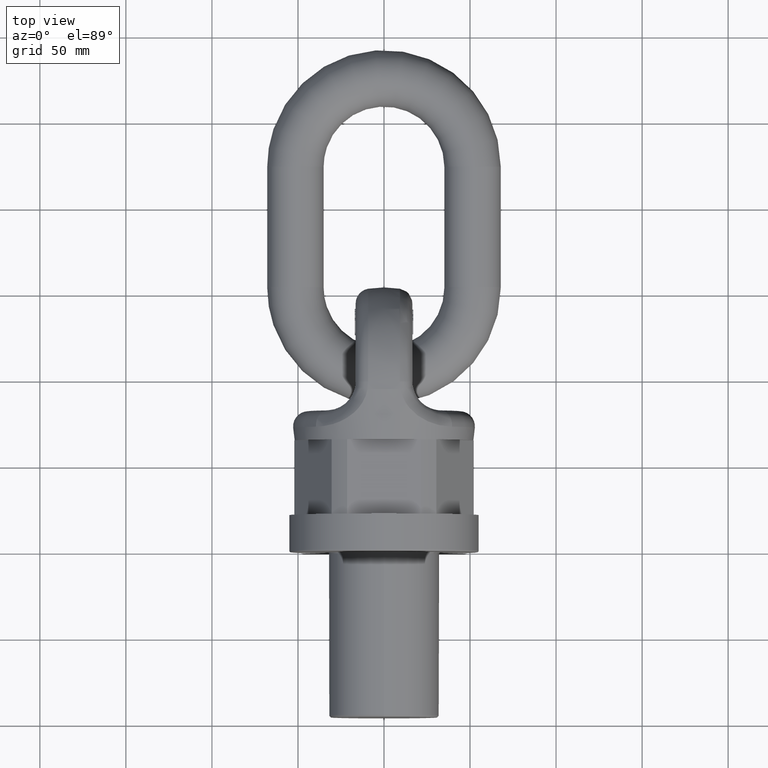
[diagram: clean part render]
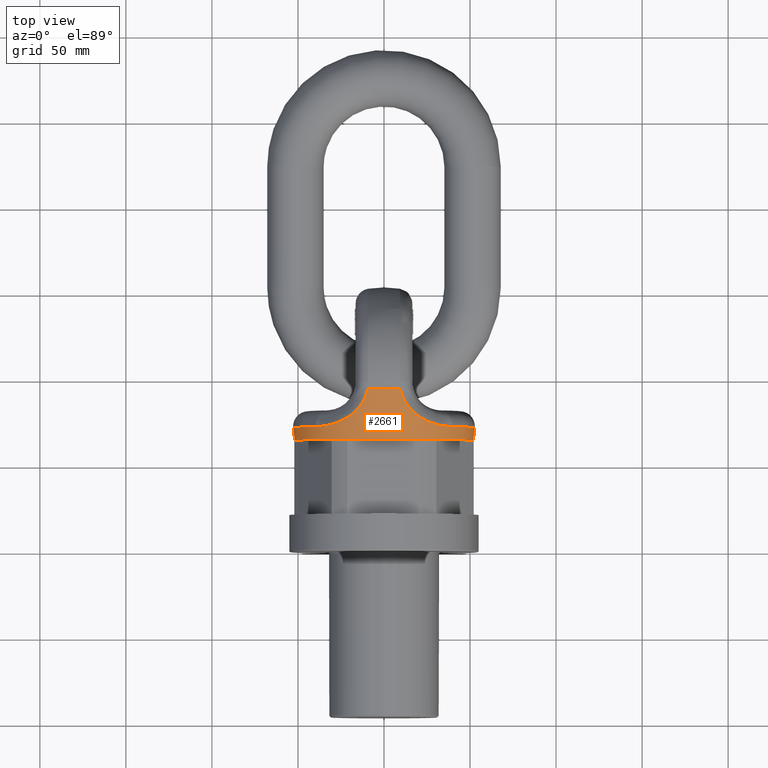
[diagram: same view with one face highlighted and labeled with its STEP entity id]
A machine part, top view. The second image highlights one B-rep face of the part: STEP entity #2661.
In plain terms, the highlighted conical surface has half-angle 5.253 deg.
Its self-contained STEP definition (entity closure, byte-faithful):
#349=B_SPLINE_CURVE_WITH_KNOTS('',3,(#7020,#7021,#7022,#7023,#7024,#7025,
#7026,#7027,#7028,#7029,#7030,#7031),.UNSPECIFIED.,.F.,.F.,(4,2,2,2,2,4),
(0.,0.25,0.5,0.75,0.875,1.),.UNSPECIFIED.);
#350=B_SPLINE_CURVE_WITH_KNOTS('',3,(#7036,#7037,#7038,#7039,#7040,#7041,
#7042,#7043,#7044,#7045),.UNSPECIFIED.,.F.,.F.,(4,2,2,2,4),(0.,0.25,0.5,
0.75,1.),.UNSPECIFIED.);
#351=B_SPLINE_CURVE_WITH_KNOTS('',3,(#7049,#7050,#7051,#7052,#7053,#7054,
#7055,#7056,#7057,#7058,#7059,#7060),.UNSPECIFIED.,.F.,.F.,(4,2,2,2,2,4),
(0.,0.25,0.5,0.75,0.875,1.),.UNSPECIFIED.);
#352=B_SPLINE_CURVE_WITH_KNOTS('',3,(#7064,#7065,#7066,#7067,#7068,#7069,
#7070,#7071,#7072,#7073),.UNSPECIFIED.,.F.,.F.,(4,2,2,2,4),(0.,0.25,0.5,
0.75,1.),.UNSPECIFIED.);
#1787=CONICAL_SURFACE('',#5649,52.1058617943637,5.2532915017207);
#2661=ADVANCED_FACE('',(#3008,#3009),#1787,.T.);
#3008=FACE_BOUND('',#3096,.T.);
#3009=FACE_BOUND('',#3097,.T.);
#3096=EDGE_LOOP('',(#3513));
#3097=EDGE_LOOP('',(#3514,#3515,#3516,#3517,#3518,#3519,#3520,#3521));
#3513=ORIENTED_EDGE('',*,*,#5058,.F.);
#3514=ORIENTED_EDGE('',*,*,#5059,.T.);
#3515=ORIENTED_EDGE('',*,*,#5060,.T.);
#3516=ORIENTED_EDGE('',*,*,#5061,.T.);
#3517=ORIENTED_EDGE('',*,*,#5062,.T.);
#3518=ORIENTED_EDGE('',*,*,#5063,.T.);
#3519=ORIENTED_EDGE('',*,*,#5064,.T.);
#3520=ORIENTED_EDGE('',*,*,#5065,.T.);
#3521=ORIENTED_EDGE('',*,*,#5066,.T.);
#4645=VERTEX_POINT('',#7019);
#4646=VERTEX_POINT('',#7032);
#4647=VERTEX_POINT('',#7033);
#4648=VERTEX_POINT('',#7035);
#4649=VERTEX_POINT('',#7046);
#4650=VERTEX_POINT('',#7048);
#4651=VERTEX_POINT('',#7061);
#4652=VERTEX_POINT('',#7063);
#4653=VERTEX_POINT('',#7074);
#5058=EDGE_CURVE('',#4645,#4645,#5553,.T.);
#5059=EDGE_CURVE('',#4646,#4647,#349,.T.);
#5060=EDGE_CURVE('',#4647,#4648,#5554,.T.);
#5061=EDGE_CURVE('',#4648,#4649,#350,.T.);
#5062=EDGE_CURVE('',#4649,#4650,#5555,.T.);
#5063=EDGE_CURVE('',#4650,#4651,#351,.T.);
#5064=EDGE_CURVE('',#4651,#4652,#5556,.T.);
#5065=EDGE_CURVE('',#4652,#4653,#352,.T.);
#5066=EDGE_CURVE('',#4653,#4646,#5557,.T.);
#5553=CIRCLE('',#5644,52.1058617943637);
#5554=CIRCLE('',#5645,54.7689818163599);
#5555=CIRCLE('',#5646,52.7907474358159);
#5556=CIRCLE('',#5647,54.7689818163599);
#5557=CIRCLE('',#5648,52.7907474358159);
#5644=AXIS2_PLACEMENT_3D('',#7018,#5959,#5960);
#5645=AXIS2_PLACEMENT_3D('',#7034,#5961,#5962);
#5646=AXIS2_PLACEMENT_3D('',#7047,#5963,#5964);
#5647=AXIS2_PLACEMENT_3D('',#7062,#5965,#5966);
#5648=AXIS2_PLACEMENT_3D('',#7075,#5967,#5968);
#5649=AXIS2_PLACEMENT_3D('',#7076,#5969,#5970);
#5959=DIRECTION('',(0.,-1.,0.));
#5960=DIRECTION('',(0.,0.,-1.));
#5961=DIRECTION('',(0.,-1.,0.));
#5962=DIRECTION('',(0.,0.,-1.));
#5963=DIRECTION('',(0.,-1.,0.));
#5964=DIRECTION('',(0.,0.,-1.));
#5965=DIRECTION('',(0.,-1.,0.));
#5966=DIRECTION('',(0.,0.,-1.));
#5967=DIRECTION('',(0.,-1.,0.));
#5968=DIRECTION('',(-2.34291072916505E-15,0.,1.));
#5969=DIRECTION('',(0.,1.,0.));
#5970=DIRECTION('',(0.,-3.85357928967801E-16,1.));
#7018=CARTESIAN_POINT('',(0.,65.,0.));
#7019=CARTESIAN_POINT('',(0.,65.,-52.1058617943637));
#7020=CARTESIAN_POINT('',(-39.52344512261,72.4488602807413,-34.9965755535044));
#7021=CARTESIAN_POINT('',(-37.005756647153,72.4488602807413,-37.8399315311034));
#7022=CARTESIAN_POINT('',(-34.1935916373493,72.7125801672574,-40.4219757461274));
#7023=CARTESIAN_POINT('',(-28.2940706816396,74.1097734282731,-44.9017778400233));
#7024=CARTESIAN_POINT('',(-25.1629883172388,75.2624464472764,-46.8210760471722));
#7025=CARTESIAN_POINT('',(-19.2267276015419,78.7079250023469,-49.8942281519693));
#7026=CARTESIAN_POINT('',(-16.3763660403344,81.0409759726313,-51.0734708220809));
#7027=CARTESIAN_POINT('',(-12.9982566390224,85.3646433570751,-52.4037027822614));
#7028=CARTESIAN_POINT('',(-12.0035120404411,86.971080786363,-52.7846340116064));
#7029=CARTESIAN_POINT('',(-10.4553507422444,90.3303236062721,-53.4276917862727));
#7030=CARTESIAN_POINT('',(-9.88394109416931,92.0984665408945,-53.6966141580966));
#7031=CARTESIAN_POINT('',(-9.54646529306761,93.964264621802,-53.930569898797));
#7032=CARTESIAN_POINT('',(-39.52344512261,72.4488602807413,-34.9965755535044));
#7033=CARTESIAN_POINT('',(-9.54646529306767,93.9642646218021,-53.9305698987969));
#7034=CARTESIAN_POINT('',(0.,93.9642646218021,0.));
#7035=CARTESIAN_POINT('',(9.54646529306783,93.9642646218021,-53.9305698987969));
#7036=CARTESIAN_POINT('',(9.54646529306782,93.9642646218019,-53.9305698987969));
#7037=CARTESIAN_POINT('',(10.2215715076205,90.2318136566987,-53.4625512320911));
#7038=CARTESIAN_POINT('',(11.8752128018626,86.7947747479395,-52.8461870570574));
#7039=CARTESIAN_POINT('',(16.4114244867927,81.0034264033429,-51.05941132954));
#7040=CARTESIAN_POINT('',(19.2284416047267,78.7012720395915,-49.8957504268851));
#7041=CARTESIAN_POINT('',(25.2375917917682,75.2248761672735,-46.7800140701433));
#7042=CARTESIAN_POINT('',(28.3252540747575,74.0985357389962,-44.8822813849155));
#7043=CARTESIAN_POINT('',(34.2474254838459,72.7037388002105,-40.3768538930967));
#7044=CARTESIAN_POINT('',(37.0068475720059,72.4488602807413,-37.8386994931719));
#7045=CARTESIAN_POINT('',(39.52344512261,72.4488602807412,-34.9965755535044));
#7046=CARTESIAN_POINT('',(39.52344512261,72.4488602807413,-34.9965755535044));
#7047=CARTESIAN_POINT('',(0.,72.4488602807412,0.));
#7048=CARTESIAN_POINT('',(39.52344512261,72.4488602807413,34.9965755535044));
#7049=CARTESIAN_POINT('',(39.52344512261,72.4488602807413,34.9965755535044));
#7050=CARTESIAN_POINT('',(37.0057566471531,72.4488602807413,37.8399315311033));
#7051=CARTESIAN_POINT('',(34.1935916373494,72.7125801672574,40.4219757461274));
#7052=CARTESIAN_POINT('',(28.2940706816398,74.1097734282732,44.9017778400232));
#7053=CARTESIAN_POINT('',(25.1629883172389,75.2624464472764,46.8210760471722));
#7054=CARTESIAN_POINT('',(19.226727601542,78.7079250023469,49.8942281519693));
#7055=CARTESIAN_POINT('',(16.3763660403345,81.0409759726313,51.0734708220809));
#7056=CARTESIAN_POINT('',(12.9982566390225,85.3646433570751,52.4037027822614));
#7057=CARTESIAN_POINT('',(12.0035120404412,86.971080786363,52.7846340116064));
#7058=CARTESIAN_POINT('',(10.4553507422445,90.3303236062721,53.4276917862727));
#7059=CARTESIAN_POINT('',(9.88394109416943,92.0984665408945,53.6966141580966));
#7060=CARTESIAN_POINT('',(9.54646529306773,93.964264621802,53.930569898797));
#7061=CARTESIAN_POINT('',(9.5464652930678,93.9642646218021,53.9305698987969));
#7062=CARTESIAN_POINT('',(0.,93.9642646218021,0.));
#7063=CARTESIAN_POINT('',(-9.54646529306795,93.9642646218021,53.9305698987969));
#7064=CARTESIAN_POINT('',(-9.54646529306795,93.9642646218019,53.9305698987968));
#7065=CARTESIAN_POINT('',(-10.2215715076206,90.2318136566987,53.462551232091));
#7066=CARTESIAN_POINT('',(-11.8752128018628,86.7947747479395,52.8461870570573));
#7067=CARTESIAN_POINT('',(-16.4114244867928,81.0034264033429,51.0594113295399));
#7068=CARTESIAN_POINT('',(-19.2284416047268,78.7012720395915,49.8957504268851));
#7069=CARTESIAN_POINT('',(-25.2375917917683,75.2248761672735,46.7800140701432));
#7070=CARTESIAN_POINT('',(-28.3252540747576,74.0985357389962,44.8822813849155));
#7071=CARTESIAN_POINT('',(-34.247425483846,72.7037388002105,40.3768538930966));
#7072=CARTESIAN_POINT('',(-37.0068475720059,72.4488602807412,37.8386994931718));
#7073=CARTESIAN_POINT('',(-39.5234451226101,72.4488602807412,34.9965755535043));
#7074=CARTESIAN_POINT('',(-39.5234451226101,72.4488602807413,34.9965755535043));
#7075=CARTESIAN_POINT('',(0.,72.4488602807412,0.));
#7076=CARTESIAN_POINT('',(0.,65.,0.));